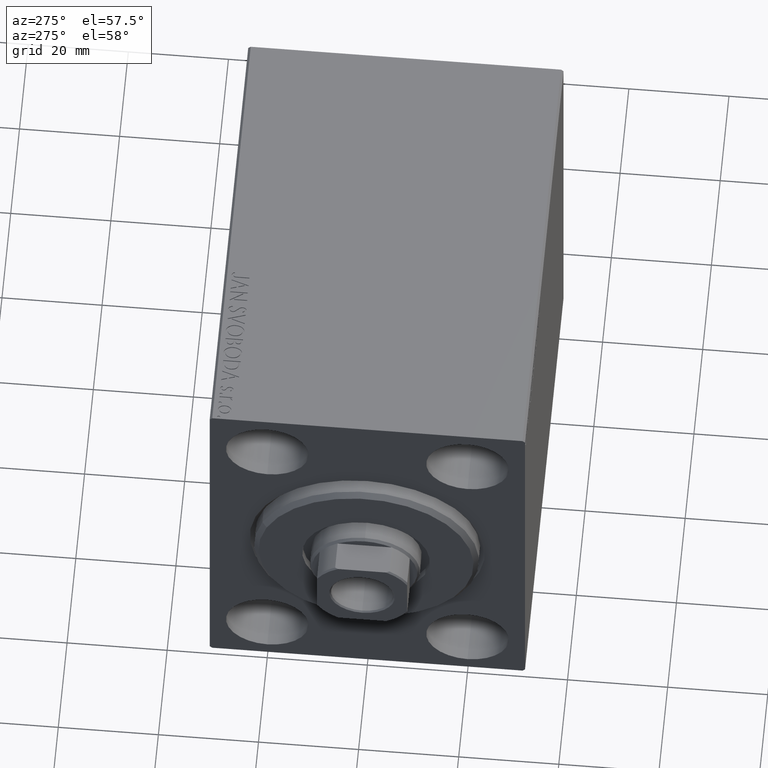
[diagram: clean part render]
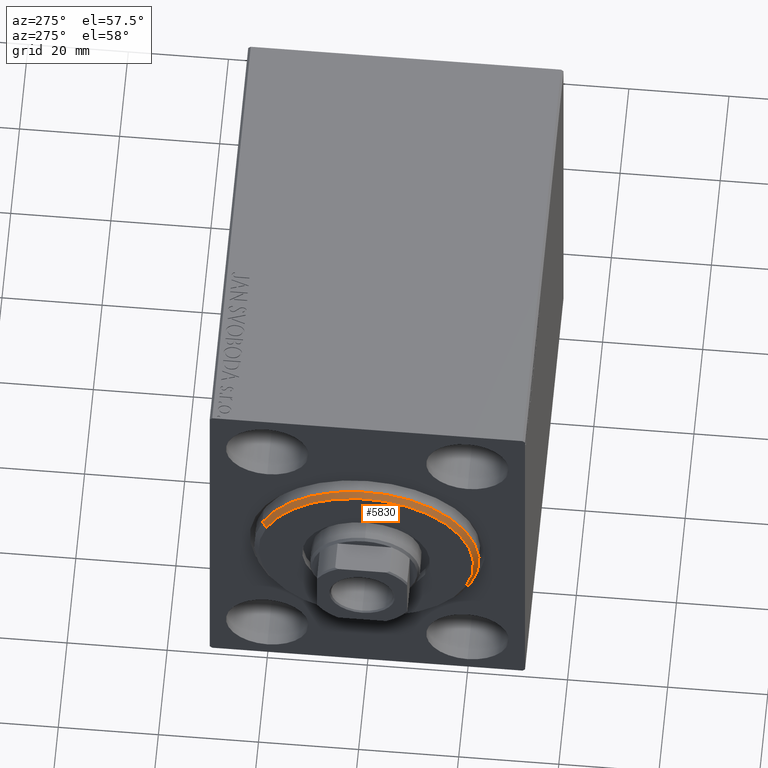
[diagram: same view with one face highlighted and labeled with its STEP entity id]
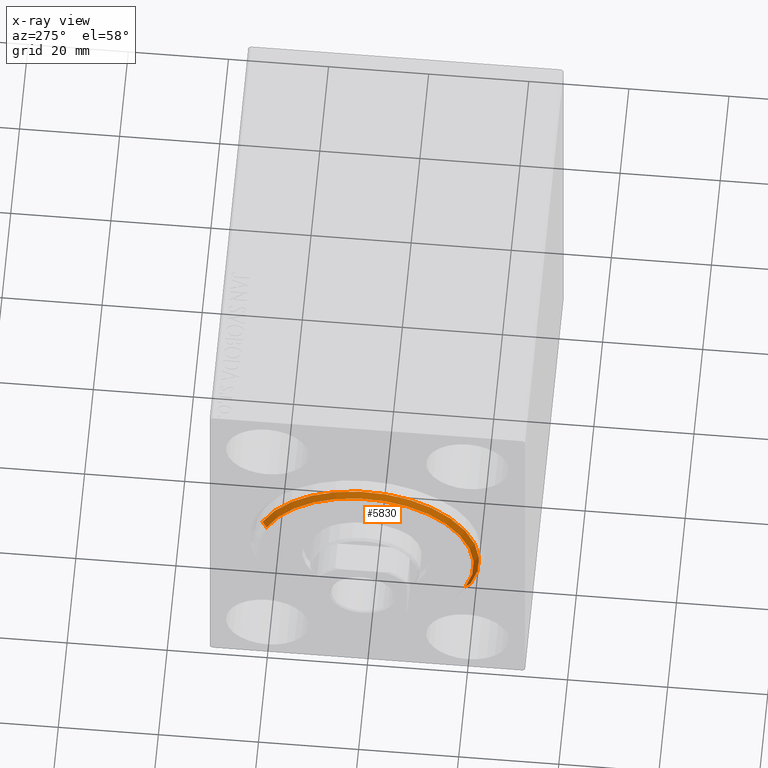
[diagram: x-ray of the same camera — body ghosted, the highlighted face saturated]
A machine part, auxiliary view. The second image highlights one B-rep face of the part: STEP entity #5830.
The next image is the same camera in x-ray: the body ghosted, the highlighted face saturated — about 0% of this face is hidden behind the body in this view.
In plain terms, the highlighted conical surface has half-angle 45 deg.
Its self-contained STEP definition (entity closure, byte-faithful):
#1107 = DIRECTION ( 'NONE',  ( -0.7071067811865487940, 8.659560562354919300E-17, -0.7071067811865463515 ) ) ;
#2146 = CARTESIAN_POINT ( 'NONE',  ( 3.000000000000000000, 0.000000000000000000, 21.50000000000000355 ) ) ;
#2353 = CIRCLE ( 'NONE', #17971, 21.50000000000000355 ) ;
#2470 = DIRECTION ( 'NONE',  ( -1.000000000000000000, 0.000000000000000000, 0.000000000000000000 ) ) ;
#3817 = EDGE_CURVE ( 'NONE', #29428, #7644, #18178, .T. ) ;
#4024 = CARTESIAN_POINT ( 'NONE',  ( 3.000000000000000000, 0.000000000000000000, 0.000000000000000000 ) ) ;
#4454 = DIRECTION ( 'NONE',  ( 0.000000000000000000, 0.000000000000000000, -1.000000000000000000 ) ) ;
#5830 = ADVANCED_FACE ( 'NONE', ( #35017 ), #7764, .T. ) ;
#7040 = VECTOR ( 'NONE', #42637, 1000.000000000000000 ) ;
#7644 = VERTEX_POINT ( 'NONE', #33460 ) ;
#7764 = CONICAL_SURFACE ( 'NONE', #32647, 21.50000000000000355, 0.7853981633974466137 ) ;
#11517 = CARTESIAN_POINT ( 'NONE',  ( 3.000000000000000000, 0.000000000000000000, 21.50000000000000355 ) ) ;
#11607 = VERTEX_POINT ( 'NONE', #42202 ) ;
#11690 = CIRCLE ( 'NONE', #33029, 22.50000000000000355 ) ;
#11735 = ORIENTED_EDGE ( 'NONE', *, *, #20167, .F. ) ;
#14021 = CARTESIAN_POINT ( 'NONE',  ( 3.000000000000000000, 2.632990618166810024E-15, -21.50000000000000355 ) ) ;
#14430 = EDGE_CURVE ( 'NONE', #43276, #11607, #34920, .T. ) ;
#14478 = EDGE_LOOP ( 'NONE', ( #34235, #11735, #24802, #14583 ) ) ;
#14583 = ORIENTED_EDGE ( 'NONE', *, *, #41737, .F. ) ;
#17971 = AXIS2_PLACEMENT_3D ( 'NONE', #4024, #34945, #4454 ) ;
#18178 = LINE ( 'NONE', #2146, #7040 ) ;
#20167 = EDGE_CURVE ( 'NONE', #29428, #43276, #2353, .T. ) ;
#23371 = CARTESIAN_POINT ( 'NONE',  ( 3.000000000000000000, 0.000000000000000000, 0.000000000000000000 ) ) ;
#24802 = ORIENTED_EDGE ( 'NONE', *, *, #3817, .T. ) ;
#27704 = DIRECTION ( 'NONE',  ( -1.000000000000000000, 0.000000000000000000, 0.000000000000000000 ) ) ;
#29428 = VERTEX_POINT ( 'NONE', #11517 ) ;
#30822 = DIRECTION ( 'NONE',  ( 0.000000000000000000, 0.000000000000000000, -1.000000000000000000 ) ) ;
#32647 = AXIS2_PLACEMENT_3D ( 'NONE', #23371, #2470, #40274 ) ;
#33029 = AXIS2_PLACEMENT_3D ( 'NONE', #34374, #27704, #30822 ) ;
#33460 = CARTESIAN_POINT ( 'NONE',  ( 1.999999999999999112, 0.000000000000000000, 22.50000000000000355 ) ) ;
#34235 = ORIENTED_EDGE ( 'NONE', *, *, #14430, .F. ) ;
#34374 = CARTESIAN_POINT ( 'NONE',  ( 1.999999999999999112, 0.000000000000000000, 0.000000000000000000 ) ) ;
#34920 = LINE ( 'NONE', #14021, #41291 ) ;
#34945 = DIRECTION ( 'NONE',  ( 1.000000000000000000, -0.000000000000000000, 0.000000000000000000 ) ) ;
#35017 = FACE_OUTER_BOUND ( 'NONE', #14478, .T. ) ;
#37830 = CARTESIAN_POINT ( 'NONE',  ( 3.000000000000000000, 2.694222958124177598E-15, -21.50000000000000355 ) ) ;
#40274 = DIRECTION ( 'NONE',  ( 0.000000000000000000, 0.000000000000000000, 1.000000000000000000 ) ) ;
#41291 = VECTOR ( 'NONE', #1107, 1000.000000000000000 ) ;
#41737 = EDGE_CURVE ( 'NONE', #11607, #7644, #11690, .T. ) ;
#42202 = CARTESIAN_POINT ( 'NONE',  ( 1.999999999999999112, 2.755455298081545172E-15, -22.50000000000000355 ) ) ;
#42637 = DIRECTION ( 'NONE',  ( -0.7071067811865487940, 0.000000000000000000, 0.7071067811865463515 ) ) ;
#43276 = VERTEX_POINT ( 'NONE', #37830 ) ;